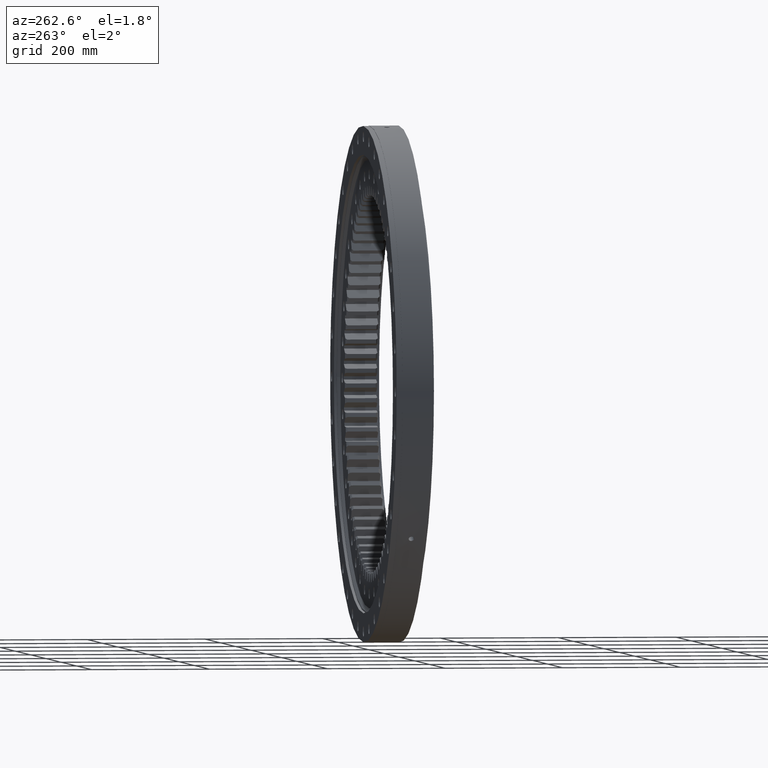
[diagram: clean part render]
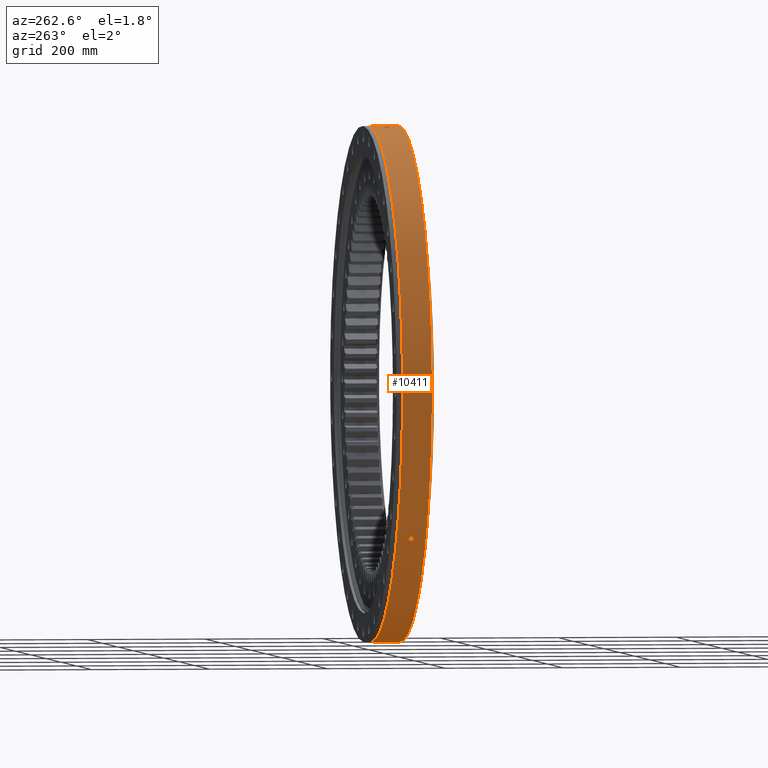
[diagram: same view with one face highlighted and labeled with its STEP entity id]
A machine part, auxiliary view. The second image highlights one B-rep face of the part: STEP entity #10411.
In plain terms, the highlighted cylindrical surface (partial cylindrical patch) has radius 435.5 mm, axis along (0, -1, -0).
Its self-contained STEP definition (entity closure, byte-faithful):
#138 = CIRCLE ( 'NONE', #5136, 435.5000000000000000 ) ;
#342 = CARTESIAN_POINT ( 'NONE',  ( -354.1575559036712700, -0.5914368894166310800, -253.4416678182807600 ) ) ;
#404 = CARTESIAN_POINT ( 'NONE',  ( -354.2253122033940300, -1.173646051606442400, -253.3469589013883200 ) ) ;
#450 = CARTESIAN_POINT ( 'NONE',  ( -354.2755129070738500, -1.455751466001378600, -253.2767727151588700 ) ) ;
#491 = CARTESIAN_POINT ( 'NONE',  ( -354.4062497816145200, -1.997039418484990000, -253.0938022913806800 ) ) ;
#496 = CARTESIAN_POINT ( 'NONE',  ( -7.750847446408002900E-014, 25.00000000000011700, -435.5000000000000000 ) ) ;
#533 = CARTESIAN_POINT ( 'NONE',  ( -354.4878795517597000, -2.259569884737226500, -252.9794859096583100 ) ) ;
#564 = CARTESIAN_POINT ( 'NONE',  ( -354.6788219309198700, -2.750359879976770100, -252.7117138438829000 ) ) ;
#835 = CARTESIAN_POINT ( 'NONE',  ( -355.4448252034549100, -3.907535832991296600, -251.6332370764749000 ) ) ;
#853 = CARTESIAN_POINT ( 'NONE',  ( -355.5941856653773800, -4.045622427522771700, -251.4221541657638000 ) ) ;
#857 = CARTESIAN_POINT ( 'NONE',  ( -355.9090276938895300, -4.271334412302891800, -250.9762707714938600 ) ) ;
#1030 = CARTESIAN_POINT ( 'NONE',  ( -359.3027641633856300, -0.2936302854455804000, -246.0930183173641700 ) ) ;
#1342 = CARTESIAN_POINT ( 'NONE',  ( -358.3085534854785700, -3.577392008252485900, -247.5384624134263700 ) ) ;
#1347 = CARTESIAN_POINT ( 'NONE',  ( -358.4399216369402000, -3.387315583227541400, -247.3481666547361300 ) ) ;
#1368 = CARTESIAN_POINT ( 'NONE',  ( -358.6752293959627300, -2.972154536229604900, -247.0068274123378600 ) ) ;
#1714 = CARTESIAN_POINT ( 'NONE',  ( -359.3027641633855200, -6.653224121184035500E-009, -246.0930183173641100 ) ) ;
#2263 = CARTESIAN_POINT ( 'NONE',  ( -354.7869296641869700, -2.976678908820940000, -252.5599488159383600 ) ) ;
#2270 = CARTESIAN_POINT ( 'NONE',  ( -355.0278587457281700, -3.391800904612437800, -252.2211583528892000 ) ) ;
#2350 = CARTESIAN_POINT ( 'NONE',  ( -355.1620904358222200, -3.581690912082928800, -252.0321393845572700 ) ) ;
#2554 = CYLINDRICAL_SURFACE ( 'NONE', #12311, 435.5000000000000000 ) ;
#2576 = EDGE_CURVE ( 'NONE', #16477, #11731, #10005, .T. ) ;
#2709 = CARTESIAN_POINT ( 'NONE',  ( -354.1405762362261400, -6.653228767792054700E-009, -253.4653867159650200 ) ) ;
#2731 = CARTESIAN_POINT ( 'NONE',  ( -354.1405762362261400, -0.2972604793834736600, -253.4653867159651400 ) ) ;
#2823 = FACE_BOUND ( 'NONE', #21503, .T. ) ;
#2906 = FACE_BOUND ( 'NONE', #10705, .T. ) ;
#3003 = DIRECTION ( 'NONE',  ( -1.173697223544192200E-016, 1.000000000000000000, 8.822830751849692900E-017 ) ) ;
#3150 = FACE_OUTER_BOUND ( 'NONE', #19796, .T. ) ;
#3511 = EDGE_CURVE ( 'NONE', #11731, #16477, #12074, .T. ) ;
#3517 = AXIS2_PLACEMENT_3D ( 'NONE', #4731, #3003, #21804 ) ;
#3538 = CARTESIAN_POINT ( 'NONE',  ( -42.43717575795746200, 0.2973275909964501800, 433.4274288894143300 ) ) ;
#3744 = CARTESIAN_POINT ( 'NONE',  ( -359.1728037870427700, -1.449887507022149300, -246.2826822513472400 ) ) ;
#3750 = CARTESIAN_POINT ( 'NONE',  ( -359.2216613398232400, -1.165417167729086100, -246.2113956181638600 ) ) ;
#3767 = CARTESIAN_POINT ( 'NONE',  ( -359.2866815183255700, -0.5854546251353346400, -246.1165045086085600 ) ) ;
#3900 = DIRECTION ( 'NONE',  ( 1.173697223544192200E-016, -1.000000000000000000, -3.494217355385783800E-017 ) ) ;
#4207 = CARTESIAN_POINT ( 'NONE',  ( -356.9130638575132400, -4.499748722903882800, -249.5463942377972200 ) ) ;
#4240 = CARTESIAN_POINT ( 'NONE',  ( -40.91600113267365700, -3.391800904612408000, 433.5737239014388300 ) ) ;
#4243 = CARTESIAN_POINT ( 'NONE',  ( -41.32986682100477100, -2.976678908820908900, 433.5344684278381400 ) ) ;
#4273 = CARTESIAN_POINT ( 'NONE',  ( -41.51535305724439000, -2.750359879976759000, 433.5167268984556600 ) ) ;
#4297 = CARTESIAN_POINT ( 'NONE',  ( -357.0803368616103100, -4.470445656953705400, -249.3069709004951400 ) ) ;
#4332 = CARTESIAN_POINT ( 'NONE',  ( -357.4093031559556300, -4.355728173831133500, -248.8351316240449200 ) ) ;
#4336 = CARTESIAN_POINT ( 'NONE',  ( -41.84272165820966200, -2.259569884737214100, 433.4852519803313800 ) ) ;
#4360 = CARTESIAN_POINT ( 'NONE',  ( -41.98253743392251600, -1.997039418484969800, 433.4717167165418300 ) ) ;
#4401 = CARTESIAN_POINT ( 'NONE',  ( -42.20636290632601400, -1.455751466001360400, 433.4499804738675300 ) ) ;
#4436 = CARTESIAN_POINT ( 'NONE',  ( -42.29224627843538500, -1.173646051606416200, 433.4415984823074800 ) ) ;
#4491 = CARTESIAN_POINT ( 'NONE',  ( -42.40814475629051800, -0.5914368894166076600, 433.4302742639274000 ) ) ;
#4520 = CARTESIAN_POINT ( 'NONE',  ( -42.43717575795746200, -0.2972604793834591200, 433.4274288894142200 ) ) ;
#4524 = CARTESIAN_POINT ( 'NONE',  ( -42.43717575795744800, -6.653209325457598200E-009, 433.4274288894142200 ) ) ;
#4529 = CARTESIAN_POINT ( 'NONE',  ( -7.750847446408002900E-014, -24.99999999999990400, -435.5000000000000000 ) ) ;
#4585 = ORIENTED_EDGE ( 'NONE', *, *, #2576, .T. ) ;
#4661 = CARTESIAN_POINT ( 'NONE',  ( -357.5727261597657500, -4.268829881208277200, -248.6002202547945500 ) ) ;
#4669 = CARTESIAN_POINT ( 'NONE',  ( -357.8830252995517200, -4.042875138513812400, -248.1533078693481700 ) ) ;
#4719 = CARTESIAN_POINT ( 'NONE',  ( -358.0301595902191700, -3.904564247616468800, -247.9409500237132700 ) ) ;
#4731 = CARTESIAN_POINT ( 'NONE',  ( -2.934243058860489600E-015, 25.00000000000007800, 8.735543388464486700E-016 ) ) ;
#4750 = CARTESIAN_POINT ( 'NONE',  ( -39.94087974906837200, -4.045622427522739700, 433.6646753071391900 ) ) ;
#4781 = CARTESIAN_POINT ( 'NONE',  ( -40.19836314301013400, -3.907535832991295300, 433.6408668081489300 ) ) ;
#4806 = CARTESIAN_POINT ( 'NONE',  ( -40.68519005925400500, -3.581690912082928800, 433.5954624708870100 ) ) ;
#4875 = DIRECTION ( 'NONE',  ( 1.173697223544192200E-016, -1.000000000000000000, -3.494217355385783800E-017 ) ) ;
#4897 = CARTESIAN_POINT ( 'NONE',  ( -36.50774304717404600, -4.268829881208270100, 433.9671746822109500 ) ) ;
#4942 = CARTESIAN_POINT ( 'NONE',  ( 2.601341135008604100E-015, -22.16364734299516900, -7.744460120454373600E-016 ) ) ;
#4979 = CARTESIAN_POINT ( 'NONE',  ( 2.677644749622138700E-014, -22.16364734299518300, 435.5000000000000000 ) ) ;
#4999 = CARTESIAN_POINT ( 'NONE',  ( -356.0732991029228700, -4.357378560772093400, -250.7431720327122900 ) ) ;
#5023 = CARTESIAN_POINT ( 'NONE',  ( -356.4040478228844200, -4.471227338600854800, -250.2728258331872300 ) ) ;
#5027 = CARTESIAN_POINT ( 'NONE',  ( -356.5727110103003400, -4.500248103356765800, -250.0324774744434500 ) ) ;
#5059 = CARTESIAN_POINT ( 'NONE',  ( -36.79289376248764400, -4.355728173831122900, 433.9431018939738500 ) ) ;
#5098 = CARTESIAN_POINT ( 'NONE',  ( -37.36600170956950300, -4.470445656953695700, 433.8941283643071600 ) ) ;
#5104 = CARTESIAN_POINT ( 'NONE',  ( -37.65698490398045800, -4.499748722903872200, 433.8689773620427600 ) ) ;
#5136 = AXIS2_PLACEMENT_3D ( 'NONE', #23434, #23539, #23605 ) ;
#5184 = CARTESIAN_POINT ( 'NONE',  ( -38.24812175887638700, -4.500248103356751600, 433.8172647684293700 ) ) ;
#5209 = DIRECTION ( 'NONE',  ( 5.551115123125782700E-017, -3.186633250933284900E-017, 1.000000000000000000 ) ) ;
#5244 = CARTESIAN_POINT ( 'NONE',  ( -358.7808220871847900, -2.745438723736354000, -246.8533953298896800 ) ) ;
#5264 = CARTESIAN_POINT ( 'NONE',  ( -358.9672857829488100, -2.252558229690437800, -246.5821664700708000 ) ) ;
#5272 = CARTESIAN_POINT ( 'NONE',  ( -359.0460139631550200, -1.991448756642903100, -246.4674875401083800 ) ) ;
#5275 = CARTESIAN_POINT ( 'NONE',  ( -39.11330725435718100, -4.357378560772081000, 433.7401086488221200 ) ) ;
#5303 = CARTESIAN_POINT ( 'NONE',  ( -39.39731238824884200, -4.271334412302861600, 433.7143948048746400 ) ) ;
#5409 = CARTESIAN_POINT ( 'NONE',  ( -38.54060113701424200, -4.471227338600842300, 433.7913723428156900 ) ) ;
#5430 = CARTESIAN_POINT ( 'NONE',  ( -35.22032012102538800, -3.577392008252488600, 434.0735409183930100 ) ) ;
#5435 = CARTESIAN_POINT ( 'NONE',  ( -35.70808156387206400, -3.904564247616467000, 434.0336885379834400 ) ) ;
#5470 = CARTESIAN_POINT ( 'NONE',  ( -35.96555599821852000, -4.042875138513810600, 434.0124454273150700 ) ) ;
#5588 = CARTESIAN_POINT ( 'NONE',  ( -33.47142347513174300, -0.2936302854455624700, 434.2118305741432800 ) ) ;
#5609 = CARTESIAN_POINT ( 'NONE',  ( -33.49980443591756800, -0.5854546251353166500, 434.2096456905832700 ) ) ;
#5613 = CARTESIAN_POINT ( 'NONE',  ( -33.61449263663685400, -1.165417167729063200, 434.2007821190194900 ) ) ;
#5646 = CARTESIAN_POINT ( 'NONE',  ( -33.70065744831423900, -1.449887507022139300, 434.1941135537363700 ) ) ;
#5649 = CARTESIAN_POINT ( 'NONE',  ( -42.43717575795744800, -6.653209325457598200E-009, 433.4274288894142200 ) ) ;
#5676 = CARTESIAN_POINT ( 'NONE',  ( -33.92409843507902400, -1.991448756642890400, 434.1767129896889500 ) ) ;
#5694 = CARTESIAN_POINT ( 'NONE',  ( -34.06277739180831800, -2.252558229690437000, 434.1658718506179200 ) ) ;
#5699 = CARTESIAN_POINT ( 'NONE',  ( -34.39090032253292900, -2.745438723736349100, 434.1400039831121400 ) ) ;
#5755 = CARTESIAN_POINT ( 'NONE',  ( -34.57657274929965000, -2.972154536229582300, 434.1252740712838500 ) ) ;
#5781 = CARTESIAN_POINT ( 'NONE',  ( -34.98983508403640000, -3.387315583227518400, 434.0921611954620400 ) ) ;
#6093 = CARTESIAN_POINT ( 'NONE',  ( -33.47142347513173600, -6.653209649780145200E-009, 434.2118305741431600 ) ) ;
#6358 = EDGE_CURVE ( 'NONE', #18399, #22059, #20457, .T. ) ;
#6794 = VERTEX_POINT ( 'NONE', #23532 ) ;
#7631 = EDGE_CURVE ( 'NONE', #24120, #6794, #18964, .T. ) ;
#7632 = CARTESIAN_POINT ( 'NONE',  ( -354.1405762362261400, -6.653228767792054700E-009, -253.4653867159650200 ) ) ;
#7754 = CARTESIAN_POINT ( 'NONE',  ( -7.490713332907140600E-014, -22.16364734299515500, -435.5000000000000000 ) ) ;
#8685 = EDGE_CURVE ( 'NONE', #24120, #18214, #8851, .T. ) ;
#8851 = LINE ( 'NONE', #7754, #9783 ) ;
#9215 = ORIENTED_EDGE ( 'NONE', *, *, #8685, .T. ) ;
#9783 = VECTOR ( 'NONE', #11058, 1000.000000000000000 ) ;
#10005 = B_SPLINE_CURVE_WITH_KNOTS ( 'NONE', 3,
 ( #17622, #18730, #17582, #19289, #19239, #19207, #18837, #18808, #18804, #18410, #18380, #18358, #17947, #17919, #17892, #18891, #18861, #18840, #19174, #19150, #19125, #18031, #17975, #17952, #18352, #18332, #18329, #18559, #18515, #18480, #19695, #19670, #19632, #17728 ),
 .UNSPECIFIED., .F., .F.,
 ( 4, 2, 2, 2, 2, 2, 2, 2, 2, 2, 2, 2, 2, 2, 2, 2, 4 ),
 ( 1.582243714429579800E-018, 0.0008793219530158968500, 0.001758643906031792000, 0.002637965859047687500, 0.003517287812063582600, 0.004396609765079477300, 0.005275931718095373300, 0.006155253671111268400, 0.007034575624127163500, 0.007913897577142921600, 0.008793219530158682300, 0.009672541483174441200, 0.01055186343619020000, 0.01143118538920595900, 0.01231050734222172000, 0.01318982929523747700, 0.01406915124825323800 ),
 .UNSPECIFIED. ) ;
#10411 = ADVANCED_FACE ( 'NONE', ( #2823, #2906, #3150 ), #2554, .T. ) ;
#10579 = CARTESIAN_POINT ( 'NONE',  ( -42.20821488084178000, 1.450674074090632800, 433.4498002741177600 ) ) ;
#10705 = EDGE_LOOP ( 'NONE', ( #4585, #15261 ) ) ;
#11058 = DIRECTION ( 'NONE',  ( 1.173697223544192200E-016, -1.000000000000000000, -3.494217355385783800E-017 ) ) ;
#11351 = ORIENTED_EDGE ( 'NONE', *, *, #6358, .T. ) ;
#11731 = VERTEX_POINT ( 'NONE', #19559 ) ;
#12074 = B_SPLINE_CURVE_WITH_KNOTS ( 'NONE', 3,
 ( #1714, #1030, #3767, #3750, #3744, #5272, #5264, #5244, #1368, #1347, #1342, #4719, #4669, #4661, #4332, #4297, #4207, #5027, #5023, #4999, #857, #853, #835, #2350, #2270, #2263, #564, #533, #491, #450, #404, #342, #2731, #2709 ),
 .UNSPECIFIED., .F., .F.,
 ( 4, 2, 2, 2, 2, 2, 2, 2, 2, 2, 2, 2, 2, 2, 2, 2, 4 ),
 ( 0.01406915124825323800, 0.01494827468483238300, 0.01582739812141152600, 0.01670652155799067000, 0.01758564499456981600, 0.01846476843114896000, 0.01934389186772810300, 0.02022301530430724700, 0.02110213874088639300, 0.02198126217746540100, 0.02286038561404440900, 0.02373950905062341800, 0.02461863248720242600, 0.02549775592378143700, 0.02637687936036044200, 0.02725600279693945300, 0.02813512623351846100 ),
 .UNSPECIFIED. ) ;
#12311 = AXIS2_PLACEMENT_3D ( 'NONE', #4942, #3900, #5209 ) ;
#13207 = ORIENTED_EDGE ( 'NONE', *, *, #22740, .T. ) ;
#13690 = CARTESIAN_POINT ( 'NONE',  ( -41.98334274734924100, 1.995683509769006900, 433.4716388564062300 ) ) ;
#14289 = CARTESIAN_POINT ( 'NONE',  ( -38.25030647270536100, 4.499895677453151800, 433.8170699753654800 ) ) ;
#14514 = EDGE_CURVE ( 'NONE', #6794, #18506, #15621, .T. ) ;
#14861 = CARTESIAN_POINT ( 'NONE',  ( -42.29434515687253100, 1.164869487968317900, 433.4413935420730600 ) ) ;
#14946 = CARTESIAN_POINT ( 'NONE',  ( -42.40813510057137100, 0.5896856941973639400, 433.4302750676683300 ) ) ;
#15261 = ORIENTED_EDGE ( 'NONE', *, *, #3511, .T. ) ;
#15621 = LINE ( 'NONE', #4979, #20770 ) ;
#15783 = CARTESIAN_POINT ( 'NONE',  ( -38.54117882348519700, 4.471353987442999900, 433.7913229973333400 ) ) ;
#15920 = EDGE_CURVE ( 'NONE', #18506, #18214, #138, .T. ) ;
#15940 = B_SPLINE_CURVE_WITH_KNOTS ( 'NONE', 3,
 ( #5649, #3538, #14946, #14861, #10579, #13690, #22510, #22590, #23859, #24008, #24238, #23305, #22734, #23051, #24496, #15783, #14289, #16932, #17843, #17681, #17500, #16201, #16229, #16852, #18037, #16455, #16772, #21141, #21772, #21873, #20393, #18739, #22975, #20972 ),
 .UNSPECIFIED., .F., .F.,
 ( 4, 2, 2, 2, 2, 2, 2, 2, 2, 2, 2, 2, 2, 2, 2, 2, 4 ),
 ( 1.918627399248746300E-018, 0.0008793219530158282200, 0.001758643906031654500, 0.002637965859047480200, 0.003517287812063306800, 0.004396609765079132100, 0.005275931718094958700, 0.006155253671110785300, 0.007034575624126611900, 0.007913897577142437600, 0.008793219530158262500, 0.009672541483174090800, 0.01055186343618991600, 0.01143118538920574100, 0.01231050734222156500, 0.01318982929523739000, 0.01406915124825321500 ),
 .UNSPECIFIED. ) ;
#16201 = CARTESIAN_POINT ( 'NONE',  ( -35.97095054702894100, 4.045563664208032200, 434.0119986020604300 ) ) ;
#16229 = CARTESIAN_POINT ( 'NONE',  ( -35.70828171759710300, 3.904599710926003100, 434.0336715957317900 ) ) ;
#16455 = CARTESIAN_POINT ( 'NONE',  ( -34.57678659945727900, 2.972765576268739700, 434.1252583880940400 ) ) ;
#16477 = VERTEX_POINT ( 'NONE', #7632 ) ;
#16772 = CARTESIAN_POINT ( 'NONE',  ( -34.39079098556363300, 2.744956580502024800, 434.1400120375585100 ) ) ;
#16852 = CARTESIAN_POINT ( 'NONE',  ( -35.22220453938967200, 3.578754349022638800, 434.0733875388818300 ) ) ;
#16932 = CARTESIAN_POINT ( 'NONE',  ( -37.66552334367068500, 4.500103743892773300, 433.8682340279298200 ) ) ;
#17228 = CARTESIAN_POINT ( 'NONE',  ( -42.43717575795744800, -6.653209325457598200E-009, 433.4274288894142200 ) ) ;
#17476 = CARTESIAN_POINT ( 'NONE',  ( 2.710934942007325500E-014, -24.99999999999993200, 435.5000000000000000 ) ) ;
#17500 = CARTESIAN_POINT ( 'NONE',  ( -36.51390481904845600, 4.270947912446284400, 433.9666565171534700 ) ) ;
#17582 = CARTESIAN_POINT ( 'NONE',  ( -354.1575614275907900, 0.5896856941973432900, -253.4416598580531600 ) ) ;
#17622 = CARTESIAN_POINT ( 'NONE',  ( -354.1405762362261400, -6.653228767792054700E-009, -253.4653867159650200 ) ) ;
#17681 = CARTESIAN_POINT ( 'NONE',  ( -36.79343826067159300, 4.355941291134431700, 433.9430563841220300 ) ) ;
#17728 = CARTESIAN_POINT ( 'NONE',  ( -359.3027641633855200, -6.653224121184035500E-009, -246.0930183173641100 ) ) ;
#17843 = CARTESIAN_POINT ( 'NONE',  ( -37.36851825448538000, 4.470844678021295600, 433.8939122948136700 ) ) ;
#17892 = CARTESIAN_POINT ( 'NONE',  ( -356.0695443593878600, 4.355842348537807500, -250.7485073785655300 ) ) ;
#17919 = CARTESIAN_POINT ( 'NONE',  ( -355.9061726122387800, 4.269500649988944300, -250.9803172009463900 ) ) ;
#17947 = CARTESIAN_POINT ( 'NONE',  ( -355.5937859800886800, 4.045120571519491100, -251.4227171480876300 ) ) ;
#17952 = CARTESIAN_POINT ( 'NONE',  ( -358.3074784457431900, 3.578754349022623700, -247.5400176778455000 ) ) ;
#17975 = CARTESIAN_POINT ( 'NONE',  ( -358.0300448409364500, 3.904599710925990700, -247.9411148907981000 ) ) ;
#18031 = CARTESIAN_POINT ( 'NONE',  ( -357.8799410631248700, 4.045563664208010800, -248.1577562730326500 ) ) ;
#18037 = CARTESIAN_POINT ( 'NONE',  ( -34.99564426555134100, 3.392749479227390500, 434.0916942588430100 ) ) ;
#18214 = VERTEX_POINT ( 'NONE', #4529 ) ;
#18329 = CARTESIAN_POINT ( 'NONE',  ( -358.7808837310247400, 2.744956580502006200, -246.8533046685199400 ) ) ;
#18332 = CARTESIAN_POINT ( 'NONE',  ( -358.6751088888432300, 2.972765576268710900, -247.0070047704120400 ) ) ;
#18352 = CARTESIAN_POINT ( 'NONE',  ( -358.4366126672086900, 3.392749479227363400, -247.3529640851937200 ) ) ;
#18358 = CARTESIAN_POINT ( 'NONE',  ( -355.4424687015975900, 3.905344252300633200, -251.6365672170796000 ) ) ;
#18380 = CARTESIAN_POINT ( 'NONE',  ( -355.1579556072111900, 3.576389273292791800, -252.0379675493121300 ) ) ;
#18399 = VERTEX_POINT ( 'NONE', #20743 ) ;
#18410 = CARTESIAN_POINT ( 'NONE',  ( -355.0267521953687200, 3.390113024380889700, -252.2227157534293000 ) ) ;
#18480 = CARTESIAN_POINT ( 'NONE',  ( -359.1730341139897300, 1.449120859627285800, -246.2823467548036800 ) ) ;
#18506 = VERTEX_POINT ( 'NONE', #17476 ) ;
#18515 = CARTESIAN_POINT ( 'NONE',  ( -359.0452356715045400, 1.994554982331745900, -246.4686217336722800 ) ) ;
#18559 = CARTESIAN_POINT ( 'NONE',  ( -358.9655257615549400, 2.257526753060515200, -246.5847275711021800 ) ) ;
#18730 = CARTESIAN_POINT ( 'NONE',  ( -354.1405762362261400, 0.2973275909964392900, -253.4653867159650200 ) ) ;
#18739 = CARTESIAN_POINT ( 'NONE',  ( -33.50076723319805400, 0.5919623068590833500, 434.2095714078029100 ) ) ;
#18804 = CARTESIAN_POINT ( 'NONE',  ( -354.7860729231221100, 2.974982210597546300, -252.5611521517437300 ) ) ;
#18808 = CARTESIAN_POINT ( 'NONE',  ( -354.6757678910551000, 2.743370418189037300, -252.7159993829563100 ) ) ;
#18837 = CARTESIAN_POINT ( 'NONE',  ( -354.4861231155118700, 2.254172600611290100, -252.9819463751716700 ) ) ;
#18840 = CARTESIAN_POINT ( 'NONE',  ( -356.9081508914427400, 4.500103743892760900, -249.5534170764211700 ) ) ;
#18861 = CARTESIAN_POINT ( 'NONE',  ( -356.5714499576442300, 4.499895677453141100, -250.0342720955876500 ) ) ;
#18891 = CARTESIAN_POINT ( 'NONE',  ( -356.4037162452077000, 4.471353987442989300, -250.2733014516053100 ) ) ;
#18964 = CIRCLE ( 'NONE', #3517, 435.5000000000000000 ) ;
#19125 = CARTESIAN_POINT ( 'NONE',  ( -357.5691965297251000, 4.270947912446266600, -248.6052974232412400 ) ) ;
#19150 = CARTESIAN_POINT ( 'NONE',  ( -357.4089914941757200, 4.355941291134413100, -248.8355804183785600 ) ) ;
#19174 = CARTESIAN_POINT ( 'NONE',  ( -357.0788914674819200, 4.470844678021280500, -249.3090422575753000 ) ) ;
#19207 = CARTESIAN_POINT ( 'NONE',  ( -354.4057796960458400, 1.995683509768997300, -253.0944607831983700 ) ) ;
#19239 = CARTESIAN_POINT ( 'NONE',  ( -354.2744308622553700, 1.450674074090624100, -253.2782864722621000 ) ) ;
#19289 = CARTESIAN_POINT ( 'NONE',  ( -354.2240852807262300, 1.164869487968297700, -253.3486741133171700 ) ) ;
#19559 = CARTESIAN_POINT ( 'NONE',  ( -359.3027641633855200, -6.653224121184035500E-009, -246.0930183173641100 ) ) ;
#19632 = CARTESIAN_POINT ( 'NONE',  ( -359.3027641633854000, 0.2936965773179492900, -246.0930183173640600 ) ) ;
#19670 = CARTESIAN_POINT ( 'NONE',  ( -359.2861357889103100, 0.5919623068590558200, -246.1173011741219100 ) ) ;
#19695 = CARTESIAN_POINT ( 'NONE',  ( -359.2211215509519200, 1.168564302726170300, -246.2121831653280400 ) ) ;
#19796 = EDGE_LOOP ( 'NONE', ( #22726, #9215, #23884, #23964 ) ) ;
#20393 = CARTESIAN_POINT ( 'NONE',  ( -33.61544456692337200, 1.168564302726194000, 434.2007084217262300 ) ) ;
#20457 = B_SPLINE_CURVE_WITH_KNOTS ( 'NONE', 3,
 ( #6093, #5588, #5609, #5613, #5646, #5676, #5694, #5699, #5755, #5781, #5430, #5435, #5470, #4897, #5059, #5098, #5104, #5184, #5409, #5275, #5303, #4750, #4781, #4806, #4240, #4243, #4273, #4336, #4360, #4401, #4436, #4491, #4520, #4524 ),
 .UNSPECIFIED., .F., .F.,
 ( 4, 2, 2, 2, 2, 2, 2, 2, 2, 2, 2, 2, 2, 2, 2, 2, 4 ),
 ( 0.01406915124825321500, 0.01494827468483229300, 0.01582739812141137000, 0.01670652155799044700, 0.01758564499456952100, 0.01846476843114859900, 0.01934389186772767600, 0.02022301530430675000, 0.02110213874088582800, 0.02198126217746490500, 0.02286038561404397900, 0.02373950905062305300, 0.02461863248720212700, 0.02549775592378120500, 0.02637687936036028200, 0.02725600279693935600, 0.02813512623351843000 ),
 .UNSPECIFIED. ) ;
#20743 = CARTESIAN_POINT ( 'NONE',  ( -33.47142347513173600, -6.653209649780145200E-009, 434.2118305741431600 ) ) ;
#20770 = VECTOR ( 'NONE', #4875, 1000.000000000000000 ) ;
#20972 = CARTESIAN_POINT ( 'NONE',  ( -33.47142347513173600, -6.653209649780145200E-009, 434.2118305741431600 ) ) ;
#21141 = CARTESIAN_POINT ( 'NONE',  ( -34.06587538106013800, 2.257526753060537800, 434.1656281778950300 ) ) ;
#21503 = EDGE_LOOP ( 'NONE', ( #13207, #11351 ) ) ;
#21772 = CARTESIAN_POINT ( 'NONE',  ( -33.92546982134336300, 1.994554982331764500, 434.1766060661300900 ) ) ;
#21804 = DIRECTION ( 'NONE',  ( -5.551115123125783900E-017, 8.763241440066534600E-017, -1.000000000000000000 ) ) ;
#21873 = CARTESIAN_POINT ( 'NONE',  ( -33.70025173631114500, 1.449120859627306200, 434.1941452744516100 ) ) ;
#22059 = VERTEX_POINT ( 'NONE', #17228 ) ;
#22510 = CARTESIAN_POINT ( 'NONE',  ( -41.84573070197333100, 2.254172600611290500, 433.4849610946772000 ) ) ;
#22590 = CARTESIAN_POINT ( 'NONE',  ( -41.52059146288316100, 2.743370418189038200, 433.5162247918851800 ) ) ;
#22726 = ORIENTED_EDGE ( 'NONE', *, *, #7631, .F. ) ;
#22734 = CARTESIAN_POINT ( 'NONE',  ( -39.94156714870699400, 4.045120571519485800, 433.6646106606874000 ) ) ;
#22740 = EDGE_CURVE ( 'NONE', #22059, #18399, #15940, .T. ) ;
#22975 = CARTESIAN_POINT ( 'NONE',  ( -33.47142347513173600, 0.2936965773179637300, 434.2118305741430500 ) ) ;
#23051 = CARTESIAN_POINT ( 'NONE',  ( -39.40224423977466700, 4.269500649988945200, 433.7139454463614900 ) ) ;
#23305 = CARTESIAN_POINT ( 'NONE',  ( -40.20242538030057500, 3.905344252300643900, 433.6404910879786600 ) ) ;
#23434 = CARTESIAN_POINT ( 'NONE',  ( 2.934243058860470700E-015, -24.99999999999991800, -8.735543388464431500E-016 ) ) ;
#23532 = CARTESIAN_POINT ( 'NONE',  ( 2.417510636121278100E-014, 25.00000000000003900, 435.5000000000000000 ) ) ;
#23539 = DIRECTION ( 'NONE',  ( 1.173697223544192200E-016, -1.000000000000000000, -3.494217355385783800E-017 ) ) ;
#23605 = DIRECTION ( 'NONE',  ( 5.551115123125782700E-017, -3.186633250933284900E-017, 1.000000000000000000 ) ) ;
#23859 = CARTESIAN_POINT ( 'NONE',  ( -41.33133731091396600, 2.974982210597535600, 433.5343281362139000 ) ) ;
#23884 = ORIENTED_EDGE ( 'NONE', *, *, #15920, .F. ) ;
#23964 = ORIENTED_EDGE ( 'NONE', *, *, #14514, .F. ) ;
#24008 = CARTESIAN_POINT ( 'NONE',  ( -40.91790315628495700, 3.390113024380883000, 433.5735443009869000 ) ) ;
#24120 = VERTEX_POINT ( 'NONE', #496 ) ;
#24238 = CARTESIAN_POINT ( 'NONE',  ( -40.69230481229468700, 3.576389273292802900, 433.5947956866470500 ) ) ;
#24496 = CARTESIAN_POINT ( 'NONE',  ( -39.11980517117152100, 4.355842348537816400, 433.7395246184628400 ) ) ;